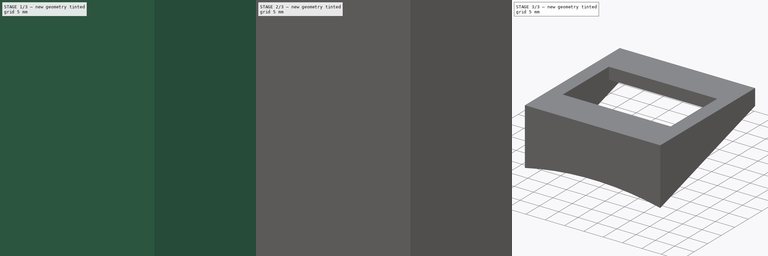
[diagram: build sequence overview — one tinted view per stage of 3, left to right]
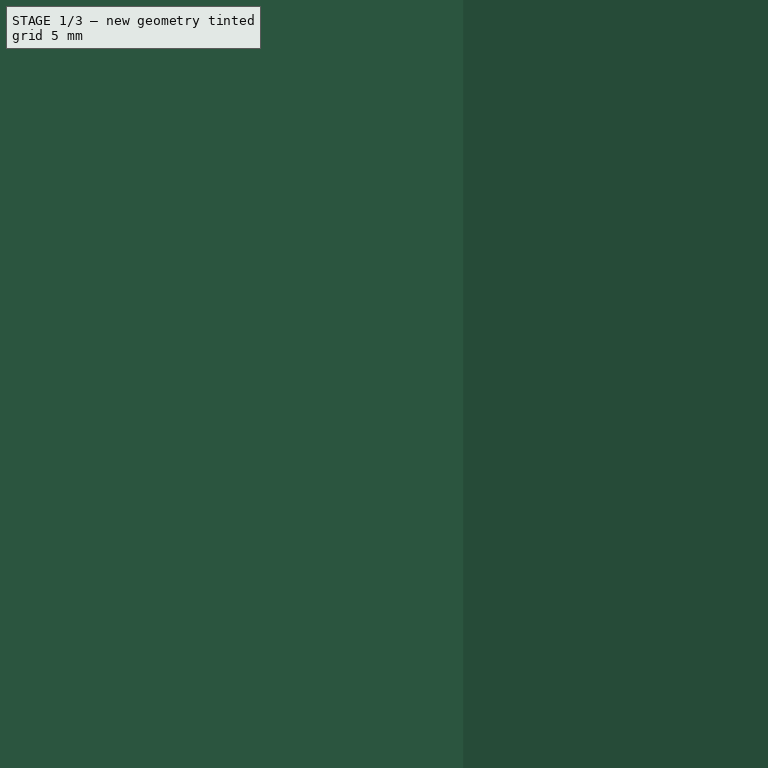
[diagram: stage 1 of 3 — iso view after this stage's code; geometry added in this stage tinted green]
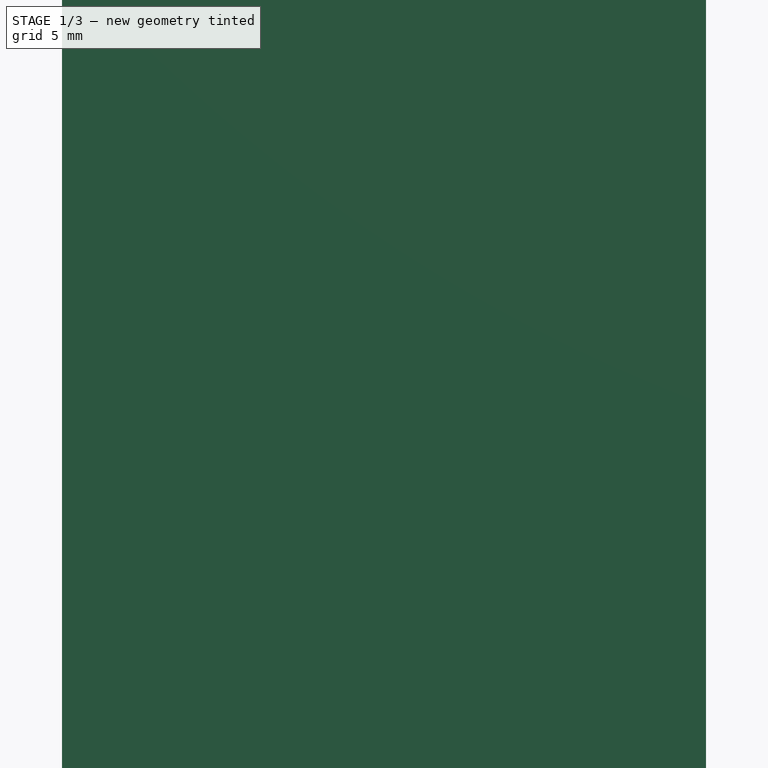
[diagram: stage 1 of 3 — front view after this stage's code; geometry added in this stage tinted green]
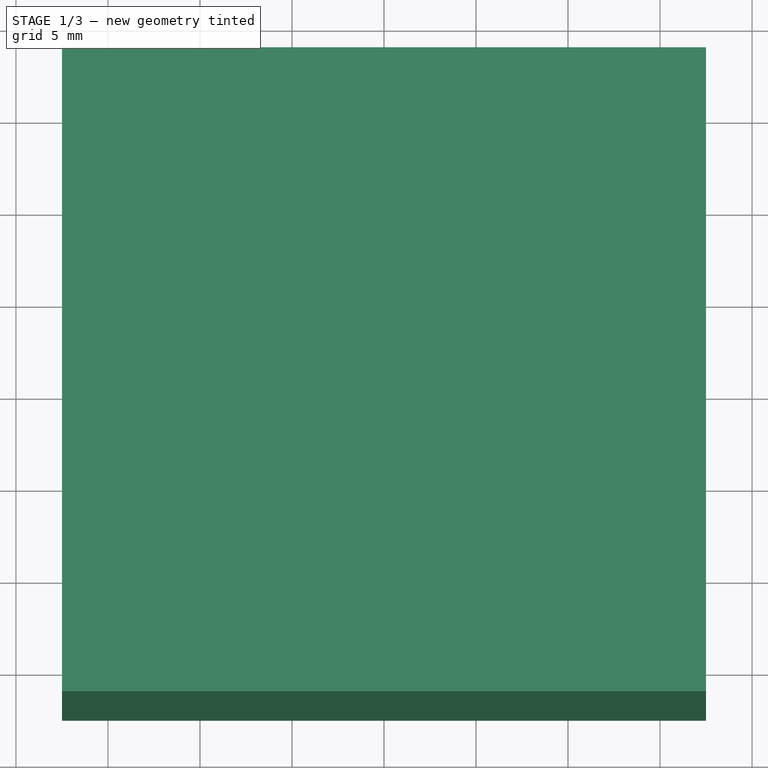
[diagram: stage 1 of 3 — top view after this stage's code; geometry added in this stage tinted green]
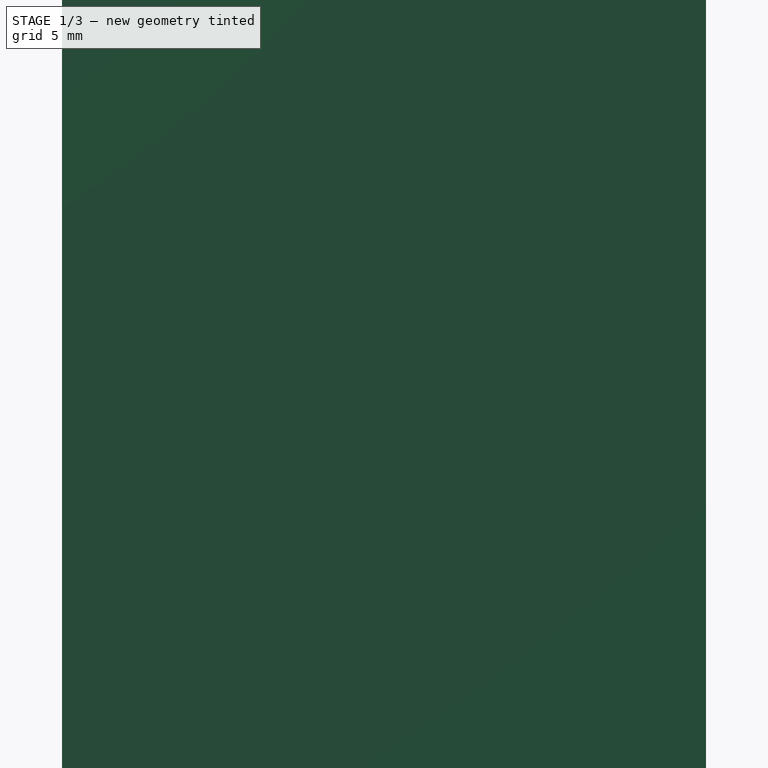
[diagram: stage 1 of 3 — right view after this stage's code; geometry added in this stage tinted green]
FCSTD DOCUMENT  (FreeCAD 0.19R)
Label: display_halter
License: All rights reserved
LicenseURL: http://en.wikipedia.org/wiki/All_rights_reserved
objects: Sketcher::SketchObject×3, PartDesign::Pocket×2, PartDesign::Pad×1, Part::Cone×1, PartDesign::Body×1, Part::Cut×1
note: 12 computed .brp shape members not serialized (recipe doc carries the construction recipe); baked Part::Feature solids carry a one-line shape summary decoded from their .brp

FEATURE [Sketcher::SketchObject] Sketch
  MapMode = 5
  Support = -> [XY_Plane]
  sketch-geometry (4):
    g0: LineSegment StartX=-17.5 StartY=17.5 StartZ=0 EndX=17.5 EndY=17.5 EndZ=0
    g1: LineSegment StartX=17.5 StartY=17.5 StartZ=0 EndX=17.5 EndY=-17.5 EndZ=0
    g2: LineSegment StartX=17.5 StartY=-17.5 StartZ=0 EndX=-17.5 EndY=-17.5 EndZ=0
    g3: LineSegment StartX=-17.5 StartY=-17.5 StartZ=0 EndX=-17.5 EndY=17.5 EndZ=0
  constraints (10):
    c: Coincident(g0,g1)
    c: Coincident(g1,g2)
    c: Coincident(g2,g3)
    c: Coincident(g3,g0)
    c: Horizontal(g2)
    c: Vertical(g1)
    c: Symmetric(g0,g0,g-2)
    c: Symmetric(g0,g2,g-1)
    c: DistanceX(g0,g0) = 35
    c: DistanceY(g3,g3) = 35
FEATURE [PartDesign::Pad] Pad
  Length = 92
  Length2 = 100
  Profile = -> Sketch
  Refine = true
  Type = 0
FEATURE [Sketcher::SketchObject] Sketch002  label="holraum"
  MapMode = 5
  Support = -> [XY_Plane]
  sketch-geometry (4):
    g0: LineSegment StartX=-14 StartY=14 StartZ=0 EndX=14 EndY=14 EndZ=0
    g1: LineSegment StartX=14 StartY=14 StartZ=0 EndX=14 EndY=-14 EndZ=0
    g2: LineSegment StartX=14 StartY=-14 StartZ=0 EndX=-14 EndY=-14 EndZ=0
    g3: LineSegment StartX=-14 StartY=-14 StartZ=0 EndX=-14 EndY=14 EndZ=0
  constraints (10):
    c: Coincident(g0,g1)
    c: Coincident(g1,g2)
    c: Coincident(g2,g3)
    c: Coincident(g3,g0)
    c: Horizontal(g0)
    c: Vertical(g1)
    c: Symmetric(g1,g2,g-2)
    c: Symmetric(g0,g2,g-1)
    c: DistanceX(g0,g0) = 28
    c: DistanceY(g1,g1) = 28
FEATURE [Sketcher::SketchObject] Sketch003  label="fenster"
  MapMode = 5
  Support = -> [XY_Plane]
  sketch-geometry (4):
    g0: LineSegment StartX=-14 StartY=8.5 StartZ=0 EndX=14 EndY=8.5 EndZ=0
    g1: LineSegment StartX=14 StartY=8.5 StartZ=0 EndX=14 EndY=-8.5 EndZ=0
    g2: LineSegment StartX=14 StartY=-8.5 StartZ=0 EndX=-14 EndY=-8.5 EndZ=0
    g3: LineSegment StartX=-14 StartY=-8.5 StartZ=0 EndX=-14 EndY=8.5 EndZ=0
  constraints (10):
    c: Coincident(g0,g1)
    c: Coincident(g1,g2)
    c: Coincident(g2,g3)
    c: Coincident(g3,g0)
    c: Horizontal(g2)
    c: Vertical(g3)
    c: Symmetric(g1,g0,g-1)
    c: Symmetric(g0,g0,g-2)
    c: DistanceX(g0,g0) = 28
    c: DistanceY(g1,g1) = 17
FEATURE [PartDesign::Pocket] Pocket001  label="hohlraum"
  BaseFeature = -> Pad
  Length = 89
  Length2 = 100
  Profile = -> Sketch002
  Refine = true
  Reversed = true
  Type = 0
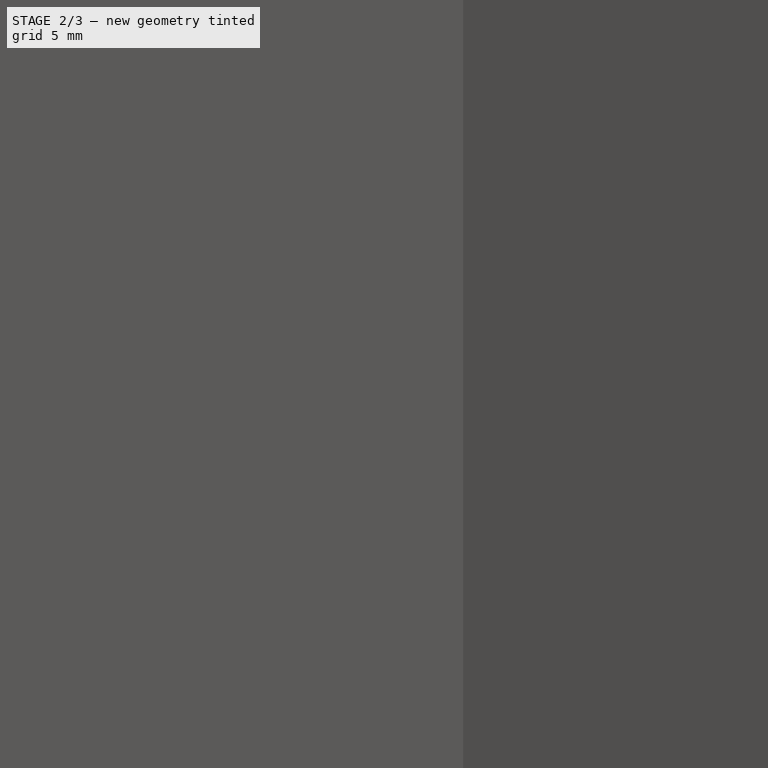
[diagram: stage 2 of 3 — iso view after this stage's code; geometry added in this stage tinted green]
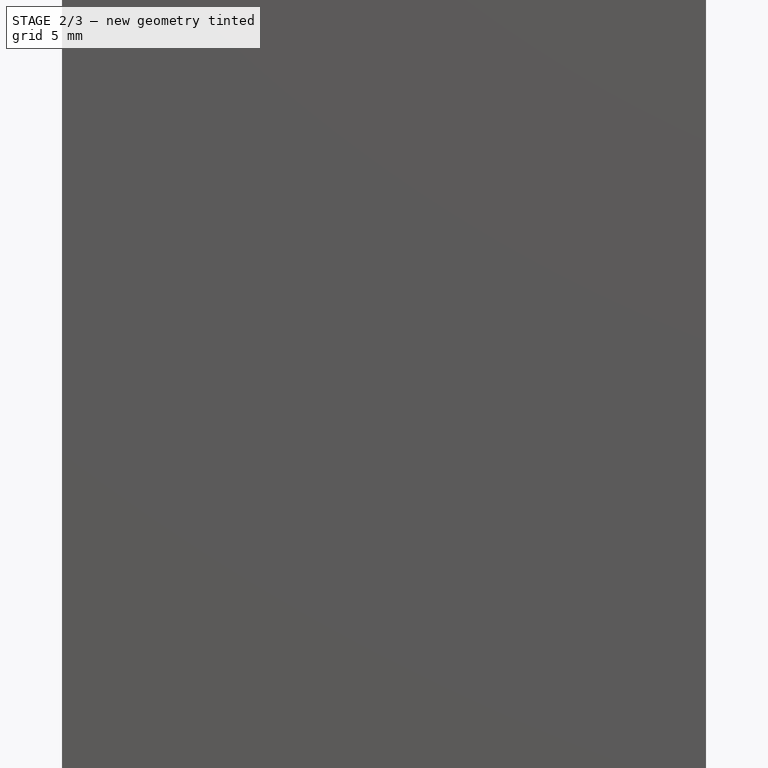
[diagram: stage 2 of 3 — front view after this stage's code; geometry added in this stage tinted green]
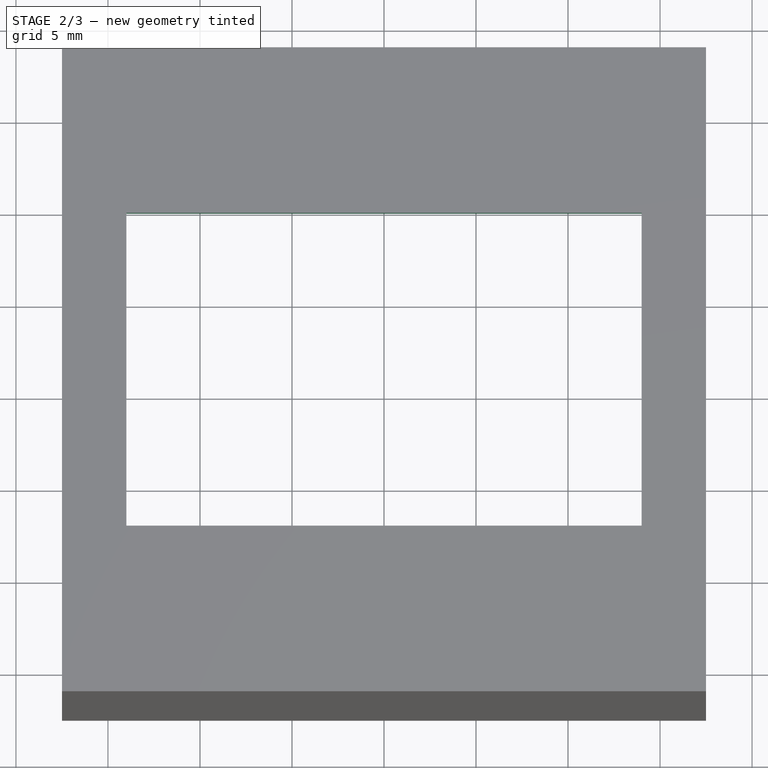
[diagram: stage 2 of 3 — top view after this stage's code; geometry added in this stage tinted green]
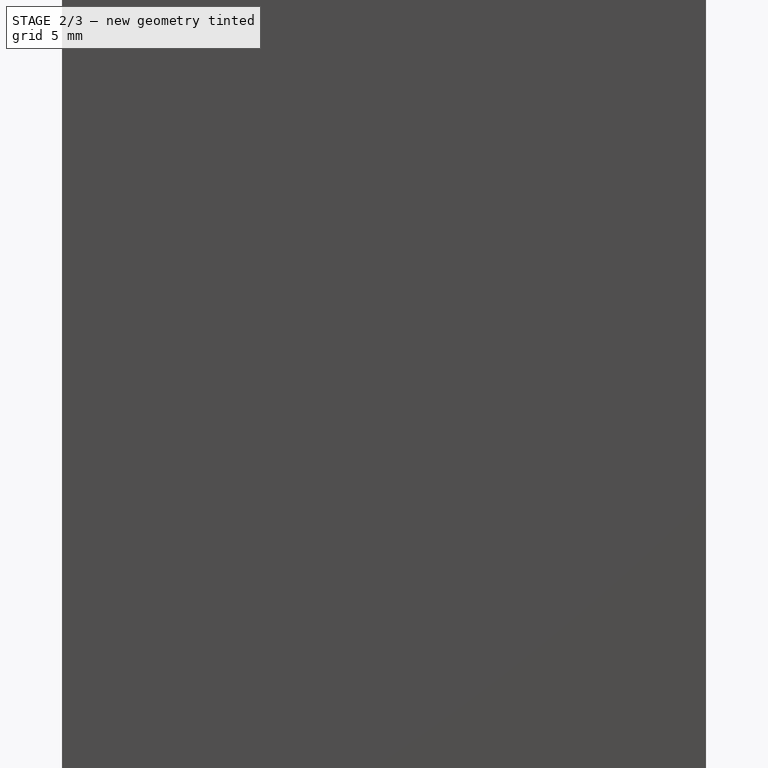
[diagram: stage 2 of 3 — right view after this stage's code; geometry added in this stage tinted green]
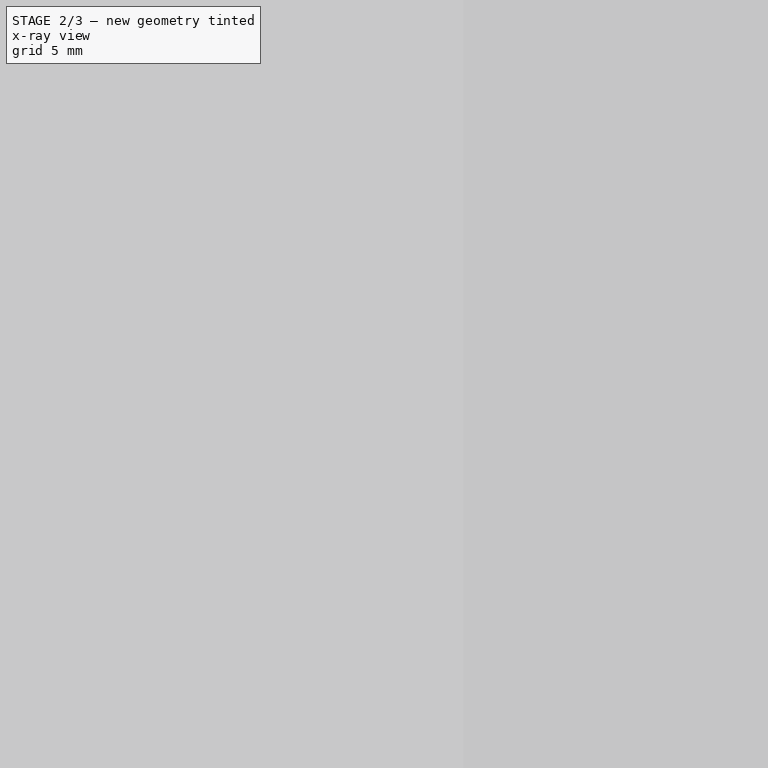
[diagram: stage 2 of 3 — x-ray composite at the iso view; earlier geometry ghosted, this stage's added geometry solid]
FEATURE [PartDesign::Pocket] Pocket  label="fenster001"
  BaseFeature = -> Pocket001
  Length = 20
  Length2 = 100
  Profile = -> Sketch003
  Refine = true
  Reversed = true
  Type = 1
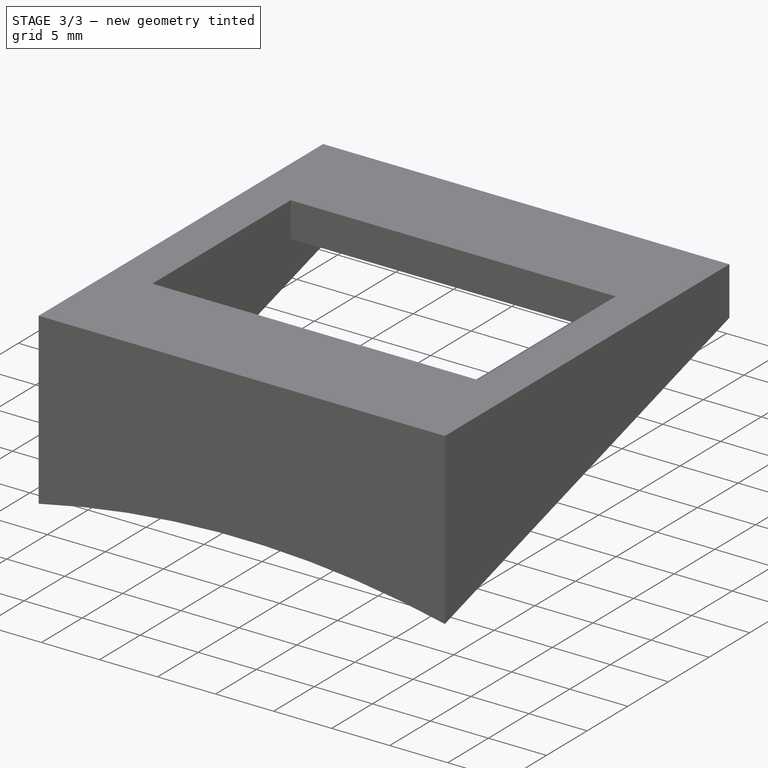
[diagram: stage 3 of 3 — iso view after this stage's code; geometry added in this stage tinted green]
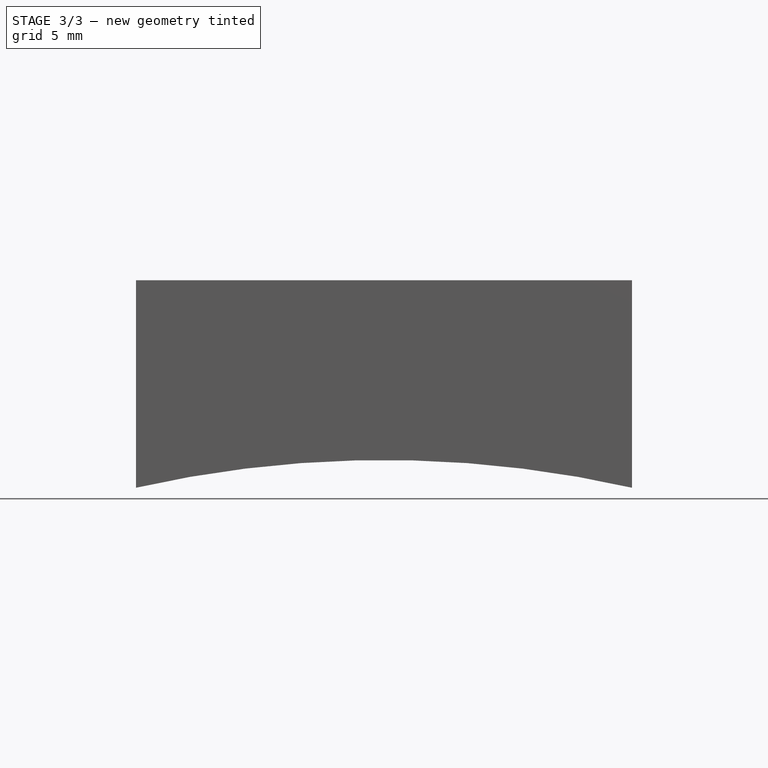
[diagram: stage 3 of 3 — front view after this stage's code; geometry added in this stage tinted green]
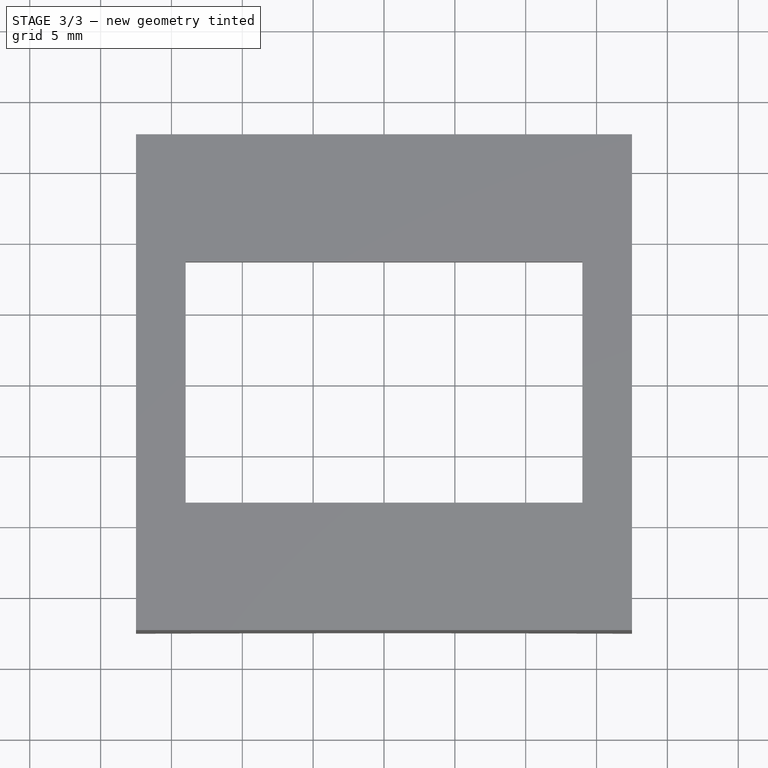
[diagram: stage 3 of 3 — top view after this stage's code; geometry added in this stage tinted green]
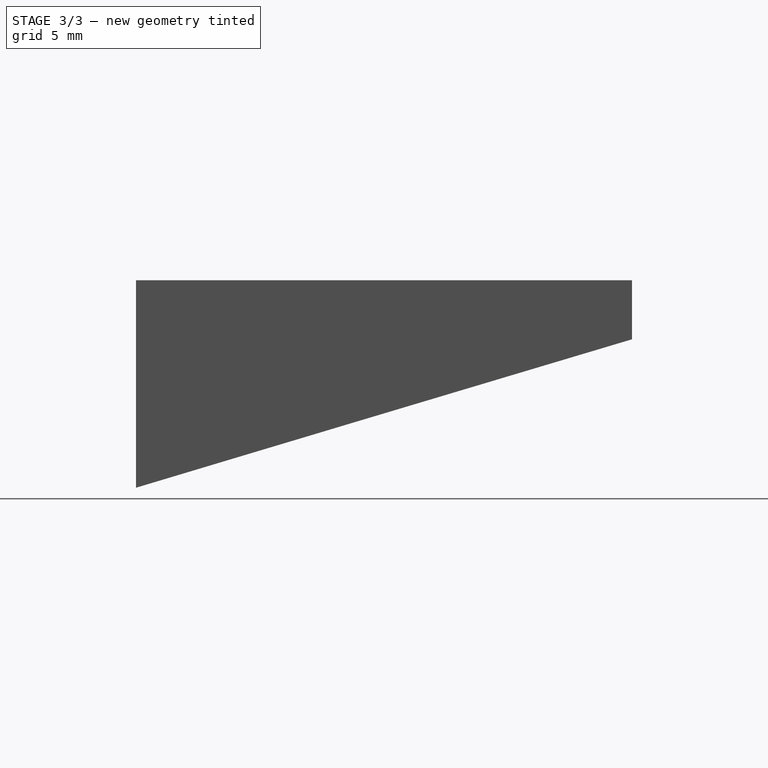
[diagram: stage 3 of 3 — right view after this stage's code; geometry added in this stage tinted green]
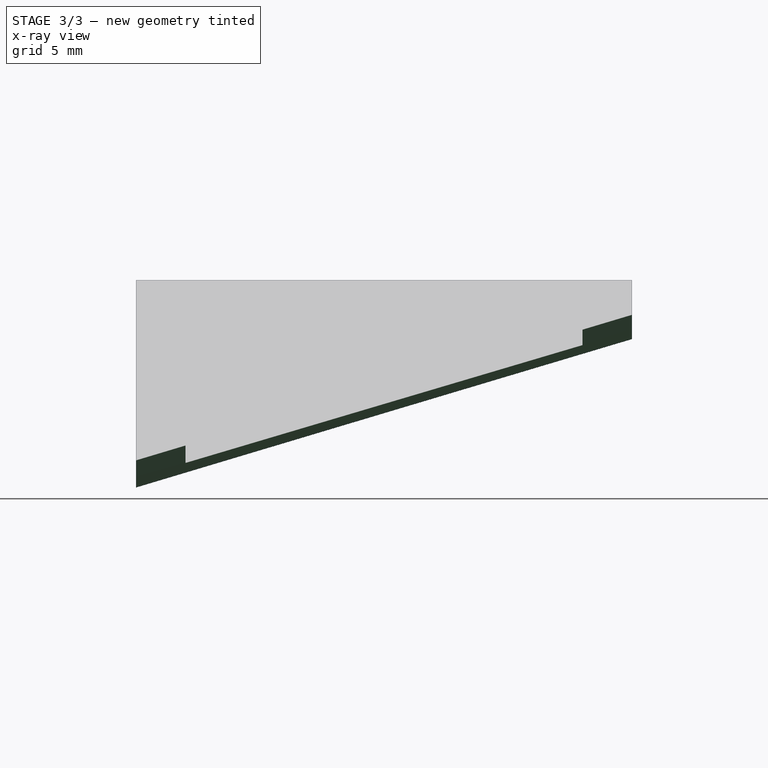
[diagram: stage 3 of 3 — x-ray composite at the right view; earlier geometry ghosted, this stage's added geometry solid]
FEATURE [Part::Cone] Cone  label="Kegel"
  Angle = 360
  AttacherType = Attacher::AttachEngine3D
  Height = 41
  Placement = pos=(0,19,0) rot=(1,0,0;1.5708rad)
  Radius1 = 90
  Radius2 = 78
FEATURE [PartDesign::Body] Body
  Group = -> [Sketch,Pad,Sketch002,Sketch003,Pocket001,Pocket]
  Origin = -> Origin
  Tip = -> Pocket
FEATURE [Part::Cut] Cut
  Base = -> Body
  Refine = true
  Tool = -> Cone
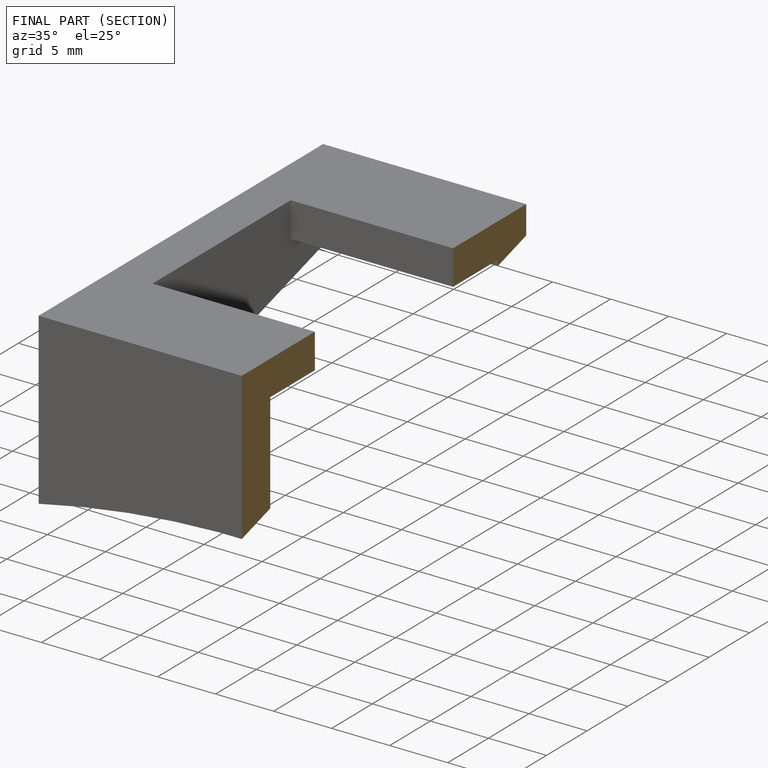
[diagram: finished part — half-section view (interior)]
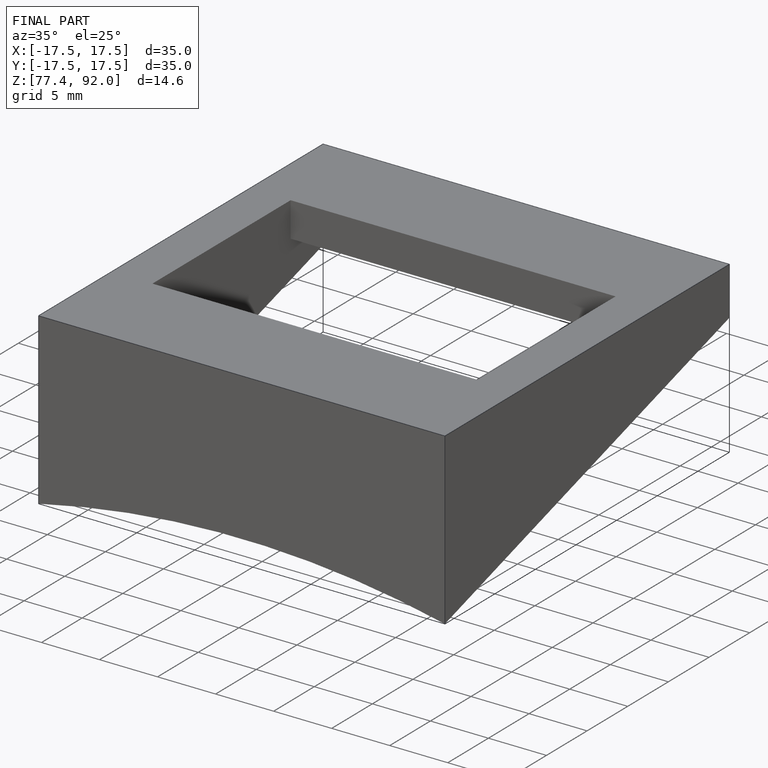
[diagram: finished part — iso view with bounding-box wireframe]
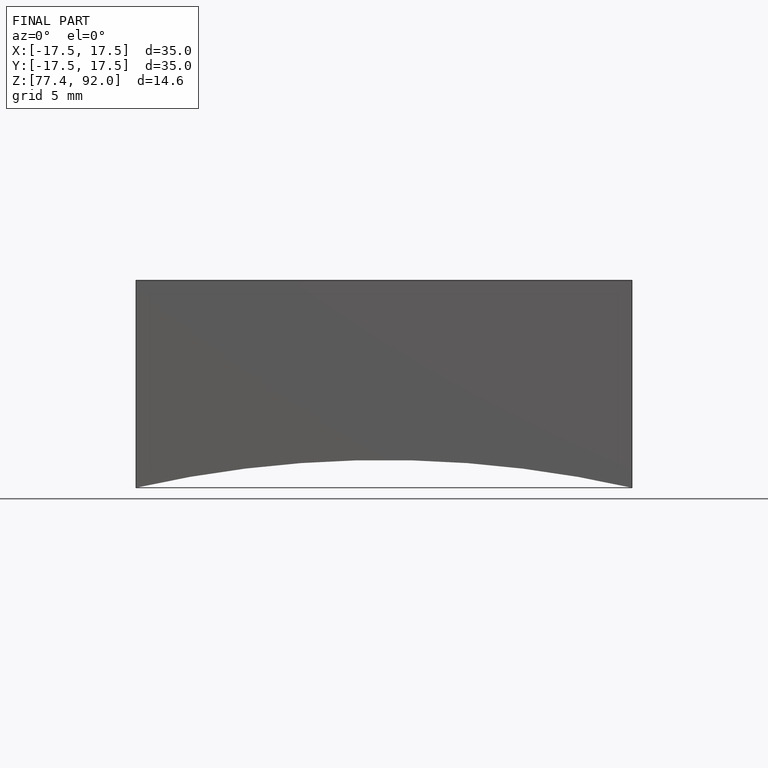
[diagram: finished part — front view with bounding-box wireframe]
